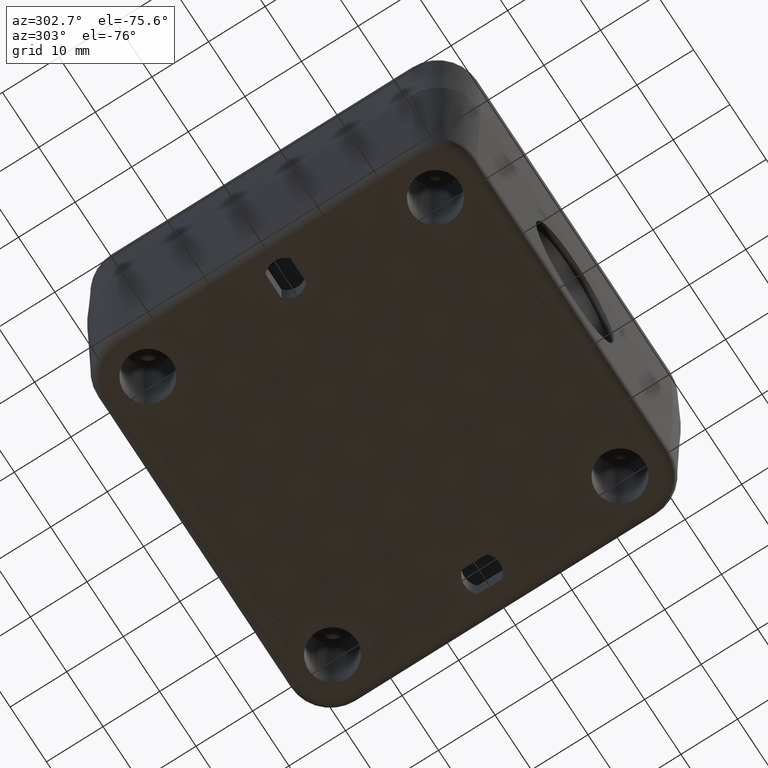
[diagram: clean part render]
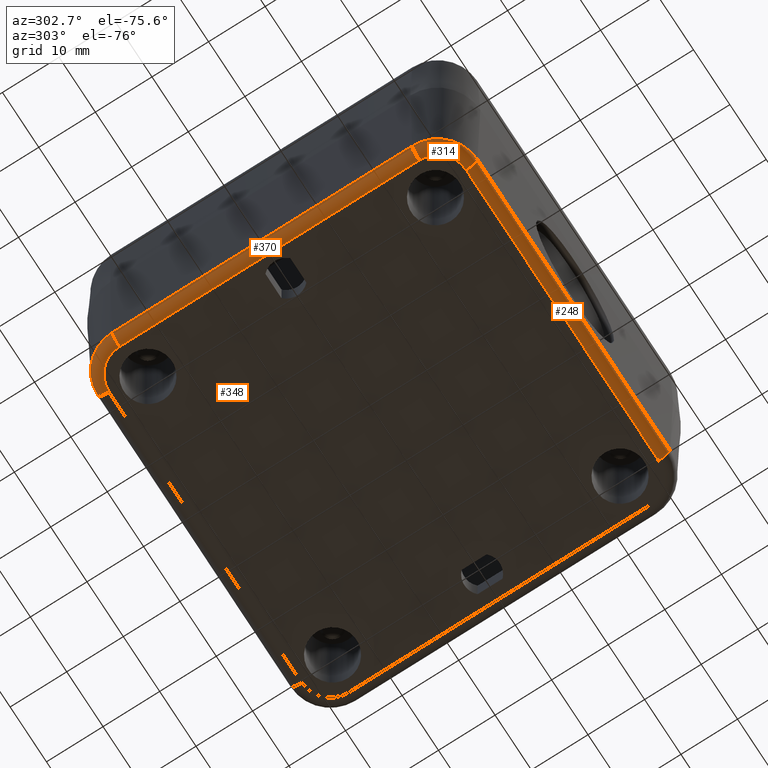
[diagram: same view with one multi-face feature highlighted, each face labeled with its STEP entity id]
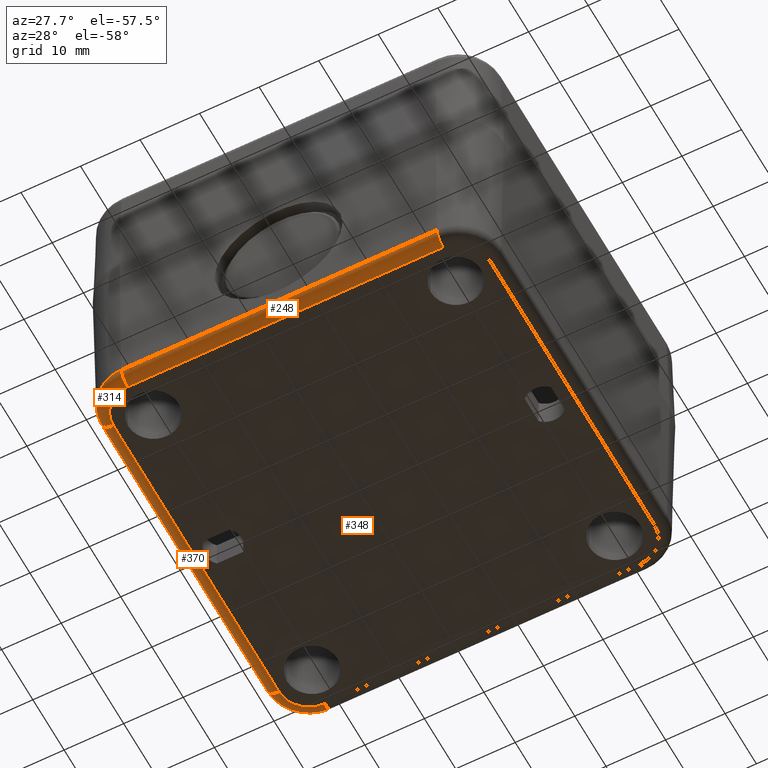
[diagram: same view with one multi-face feature highlighted, each face labeled with its STEP entity id]
A machine part, auxiliary view. The highlighted faces form ONE feature: a constant-radius fillet chain: 4 tangent blend faces with common blend radius 2 mm. The faces share edges in the B-rep.
A second angle (auxiliary view) of the same feature is appended — it is thin or edge-on in the first view.
Their STEP definitions:
[1] entity #348 (Torus):
#254=CARTESIAN_POINT('',(-42.372549297178509,41.707040577232220,0.0));
#255=VERTEX_POINT('',#254);
#256=CARTESIAN_POINT('',(-42.372549297178509,43.706735967545001,1.965095187125433));
#257=VERTEX_POINT('',#256);
#258=CARTESIAN_POINT('',(-42.372549297178509,41.707040577232220,2.0));
#259=DIRECTION('',(1.0,0.0,0.0));
#260=DIRECTION('',(0.0,0.0,-1.0));
#261=AXIS2_PLACEMENT_3D('',#258,#259,#260);
#262=CIRCLE('',#261,2.0);
#263=EDGE_CURVE('',#255,#257,#262,.T.);
#315=CARTESIAN_POINT('',(-42.372549297178509,36.672435103463599,1.999999999999993));
#316=DIRECTION('',(0.0,0.0,1.0));
#317=DIRECTION('',(1.0,0.0,0.0));
#318=AXIS2_PLACEMENT_3D('',#315,#316,#317);
#319=TOROIDAL_SURFACE('',#318,5.034605473768633,2.0);
#320=CARTESIAN_POINT('',(-47.407154770947145,36.672435103463599,0.0));
#321=VERTEX_POINT('',#320);
#322=CARTESIAN_POINT('',(-49.406850161259925,36.672435103463599,1.965095187125426));
#323=VERTEX_POINT('',#322);
#324=CARTESIAN_POINT('',(-47.407154770947145,36.672435103463599,1.999999999999993));
#325=DIRECTION('',(0.0,1.0,0.0));
#326=DIRECTION('',(0.0,0.0,-1.0));
#327=AXIS2_PLACEMENT_3D('',#324,#325,#326);
#328=CIRCLE('',#327,1.999999999999993);
#329=EDGE_CURVE('',#321,#323,#328,.T.);
#330=ORIENTED_EDGE('',*,*,#329,.T.);
#331=CARTESIAN_POINT('',(-42.372549297178509,36.672435103463599,1.965095187125426));
#332=DIRECTION('',(0.0,0.0,-1.000000000000000));
#333=DIRECTION('',(-0.707106781186547,0.707106781186547,0.0));
#334=AXIS2_PLACEMENT_3D('',#331,#332,#333);
#335=CIRCLE('',#334,7.034300864081411);
#336=EDGE_CURVE('',#323,#257,#335,.T.);
#337=ORIENTED_EDGE('',*,*,#336,.T.);
#338=ORIENTED_EDGE('',*,*,#263,.F.);
#339=CARTESIAN_POINT('',(-42.372549297178509,36.672435103463599,0.0));
#340=DIRECTION('',(0.0,0.0,1.000000000000000));
#341=DIRECTION('',(-0.707106781186548,0.707106781186548,0.0));
#342=AXIS2_PLACEMENT_3D('',#339,#340,#341);
#343=CIRCLE('',#342,5.034605473768633);
#344=EDGE_CURVE('',#255,#321,#343,.T.);
#345=ORIENTED_EDGE('',*,*,#344,.T.);
#346=EDGE_LOOP('',(#330,#337,#338,#345));
#347=FACE_OUTER_BOUND('',#346,.T.);
#348=ADVANCED_FACE('',(#347),#319,.T.);
[2] entity #370 (Cylinder):
#286=CARTESIAN_POINT('',(-49.406850161259896,-16.327564896536423,1.965095187125426));
#287=VERTEX_POINT('',#286);
#288=CARTESIAN_POINT('',(-47.407154770947116,-16.327564896536419,0.0));
#289=VERTEX_POINT('',#288);
#290=CARTESIAN_POINT('',(-47.407154770947116,-16.327564896536419,1.999999999999993));
#291=DIRECTION('',(2.220108E-015,-1.0,3.875213E-017));
#292=DIRECTION('',(-0.999847695156391,-2.220446E-015,-0.017452406437283));
#293=AXIS2_PLACEMENT_3D('',#290,#291,#292);
#294=CIRCLE('',#293,1.999999999999994);
#295=EDGE_CURVE('',#287,#289,#294,.T.);
#320=CARTESIAN_POINT('',(-47.407154770947145,36.672435103463599,0.0));
#321=VERTEX_POINT('',#320);
#322=CARTESIAN_POINT('',(-49.406850161259925,36.672435103463599,1.965095187125426));
#323=VERTEX_POINT('',#322);
#324=CARTESIAN_POINT('',(-47.407154770947145,36.672435103463599,1.999999999999993));
#325=DIRECTION('',(0.0,1.0,0.0));
#326=DIRECTION('',(0.0,0.0,-1.0));
#327=AXIS2_PLACEMENT_3D('',#324,#325,#326);
#328=CIRCLE('',#327,1.999999999999993);
#329=EDGE_CURVE('',#321,#323,#328,.T.);
#349=CARTESIAN_POINT('',(-47.407154770947116,-3.077564896536415,2.0));
#350=DIRECTION('',(5.027425E-016,-1.0,0.0));
#351=DIRECTION('',(-0.700909264299853,-3.891421E-016,-0.713250449154180));
#352=AXIS2_PLACEMENT_3D('',#349,#350,#351);
#353=CYLINDRICAL_SURFACE('',#352,2.0);
#354=ORIENTED_EDGE('',*,*,#295,.F.);
#355=CARTESIAN_POINT('',(-49.406850161259896,-16.327564896536423,1.965095187125426));
#356=DIRECTION('',(0.0,1.0,0.0));
#357=VECTOR('',#356,53.000000000000021);
#358=LINE('',#355,#357);
#359=EDGE_CURVE('',#287,#323,#358,.T.);
#360=ORIENTED_EDGE('',*,*,#359,.T.);
#361=ORIENTED_EDGE('',*,*,#329,.F.);
#362=CARTESIAN_POINT('',(-47.407154770947145,36.672435103463599,0.0));
#363=DIRECTION('',(0.0,-1.0,0.0));
#364=VECTOR('',#363,53.000000000000014);
#365=LINE('',#362,#364);
#366=EDGE_CURVE('',#321,#289,#365,.T.);
#367=ORIENTED_EDGE('',*,*,#366,.T.);
#368=EDGE_LOOP('',(#354,#360,#361,#367));
#369=FACE_OUTER_BOUND('',#368,.T.);
#370=ADVANCED_FACE('',(#369),#353,.T.);
[3] entity #314 (Torus):
#222=CARTESIAN_POINT('',(-42.372549297178494,-23.361865760617832,1.965095187125433));
#223=VERTEX_POINT('',#222);
#224=CARTESIAN_POINT('',(-42.372549297178494,-21.362170370305051,0.0));
#225=VERTEX_POINT('',#224);
#226=CARTESIAN_POINT('',(-42.372549297178494,-21.362170370305051,2.000000000000000));
#227=DIRECTION('',(1.0,0.0,0.0));
#228=DIRECTION('',(0.0,-0.999847695156391,-0.017452406437283));
#229=AXIS2_PLACEMENT_3D('',#226,#227,#228);
#230=CIRCLE('',#229,1.999999999999999);
#231=EDGE_CURVE('',#223,#225,#230,.T.);
#281=CARTESIAN_POINT('',(-42.372549297178480,-16.327564896536412,1.999999999999993));
#282=DIRECTION('',(0.0,0.0,1.0));
#283=DIRECTION('',(1.0,0.0,0.0));
#284=AXIS2_PLACEMENT_3D('',#281,#282,#283);
#285=TOROIDAL_SURFACE('',#284,5.034605473768639,2.0);
#286=CARTESIAN_POINT('',(-49.406850161259896,-16.327564896536423,1.965095187125426));
#287=VERTEX_POINT('',#286);
#288=CARTESIAN_POINT('',(-47.407154770947116,-16.327564896536419,0.0));
#289=VERTEX_POINT('',#288);
#290=CARTESIAN_POINT('',(-47.407154770947116,-16.327564896536419,1.999999999999993));
#291=DIRECTION('',(2.220108E-015,-1.0,3.875213E-017));
#292=DIRECTION('',(-0.999847695156391,-2.220446E-015,-0.017452406437283));
#293=AXIS2_PLACEMENT_3D('',#290,#291,#292);
#294=CIRCLE('',#293,1.999999999999994);
#295=EDGE_CURVE('',#287,#289,#294,.T.);
#296=ORIENTED_EDGE('',*,*,#295,.T.);
#297=CARTESIAN_POINT('',(-42.372549297178480,-16.327564896536412,0.0));
#298=DIRECTION('',(0.0,0.0,1.0));
#299=DIRECTION('',(-0.707106781186548,-0.707106781186547,0.0));
#300=AXIS2_PLACEMENT_3D('',#297,#298,#299);
#301=CIRCLE('',#300,5.034605473768639);
#302=EDGE_CURVE('',#289,#225,#301,.T.);
#303=ORIENTED_EDGE('',*,*,#302,.T.);
#304=ORIENTED_EDGE('',*,*,#231,.F.);
#305=CARTESIAN_POINT('',(-42.372549297178480,-16.327564896536412,1.965095187125426));
#306=DIRECTION('',(0.0,0.0,-1.0));
#307=DIRECTION('',(-0.707106781186548,-0.707106781186547,0.0));
#308=AXIS2_PLACEMENT_3D('',#305,#306,#307);
#309=CIRCLE('',#308,7.034300864081419);
#310=EDGE_CURVE('',#223,#287,#309,.T.);
#311=ORIENTED_EDGE('',*,*,#310,.T.);
#312=EDGE_LOOP('',(#296,#303,#304,#311));
#313=FACE_OUTER_BOUND('',#312,.T.);
#314=ADVANCED_FACE('',(#313),#285,.T.);
[4] entity #248 (Cylinder):
#154=CARTESIAN_POINT('',(10.627450702821495,-23.361865760617803,1.965095187125425));
#155=VERTEX_POINT('',#154);
#156=CARTESIAN_POINT('',(10.627450702821495,-21.362170370305009,0.0));
#157=VERTEX_POINT('',#156);
#158=CARTESIAN_POINT('',(10.627450702821495,-21.362170370305009,1.999999999999993));
#159=DIRECTION('',(1.0,0.0,0.0));
#160=DIRECTION('',(0.0,-0.999847695156391,-0.017452406437284));
#161=AXIS2_PLACEMENT_3D('',#158,#159,#160);
#162=CIRCLE('',#161,2.000000000000012);
#163=EDGE_CURVE('',#155,#157,#162,.T.);
#217=CARTESIAN_POINT('',(-2.622549297178503,-21.362170370305030,2.000000000000000));
#218=DIRECTION('',(1.0,5.027425E-016,0.0));
#219=DIRECTION('',(3.891421E-016,-0.700909264299852,-0.713250449154181));
#220=AXIS2_PLACEMENT_3D('',#217,#218,#219);
#221=CYLINDRICAL_SURFACE('',#220,2.0);
#222=CARTESIAN_POINT('',(-42.372549297178494,-23.361865760617832,1.965095187125433));
#223=VERTEX_POINT('',#222);
#224=CARTESIAN_POINT('',(-42.372549297178494,-21.362170370305051,0.0));
#225=VERTEX_POINT('',#224);
#226=CARTESIAN_POINT('',(-42.372549297178494,-21.362170370305051,2.000000000000000));
#227=DIRECTION('',(1.0,0.0,0.0));
#228=DIRECTION('',(0.0,-0.999847695156391,-0.017452406437283));
#229=AXIS2_PLACEMENT_3D('',#226,#227,#228);
#230=CIRCLE('',#229,1.999999999999999);
#231=EDGE_CURVE('',#223,#225,#230,.T.);
#232=ORIENTED_EDGE('',*,*,#231,.T.);
#233=CARTESIAN_POINT('',(-42.372549297178494,-21.362170370305051,0.0));
#234=DIRECTION('',(1.0,0.0,0.0));
#235=VECTOR('',#234,52.999999999999986);
#236=LINE('',#233,#235);
#237=EDGE_CURVE('',#225,#157,#236,.T.);
#238=ORIENTED_EDGE('',*,*,#237,.T.);
#239=ORIENTED_EDGE('',*,*,#163,.F.);
#240=CARTESIAN_POINT('',(10.627450702821495,-23.361865760617803,1.965095187125425));
#241=DIRECTION('',(-1.0,0.0,0.0));
#242=VECTOR('',#241,52.999999999999986);
#243=LINE('',#240,#242);
#244=EDGE_CURVE('',#155,#223,#243,.T.);
#245=ORIENTED_EDGE('',*,*,#244,.T.);
#246=EDGE_LOOP('',(#232,#238,#239,#245));
#247=FACE_OUTER_BOUND('',#246,.T.);
#248=ADVANCED_FACE('',(#247),#221,.T.);